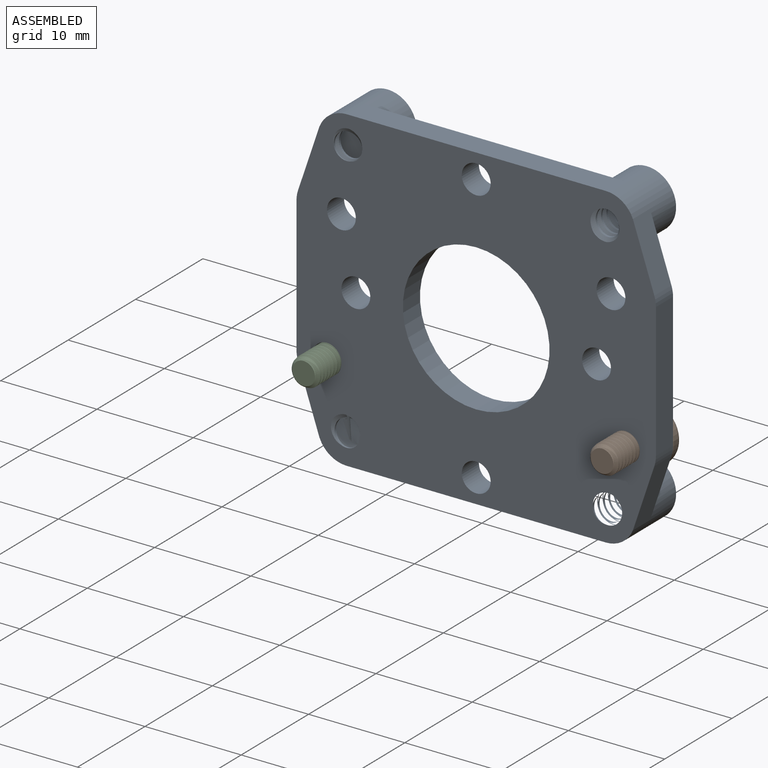
[diagram: assembled view]
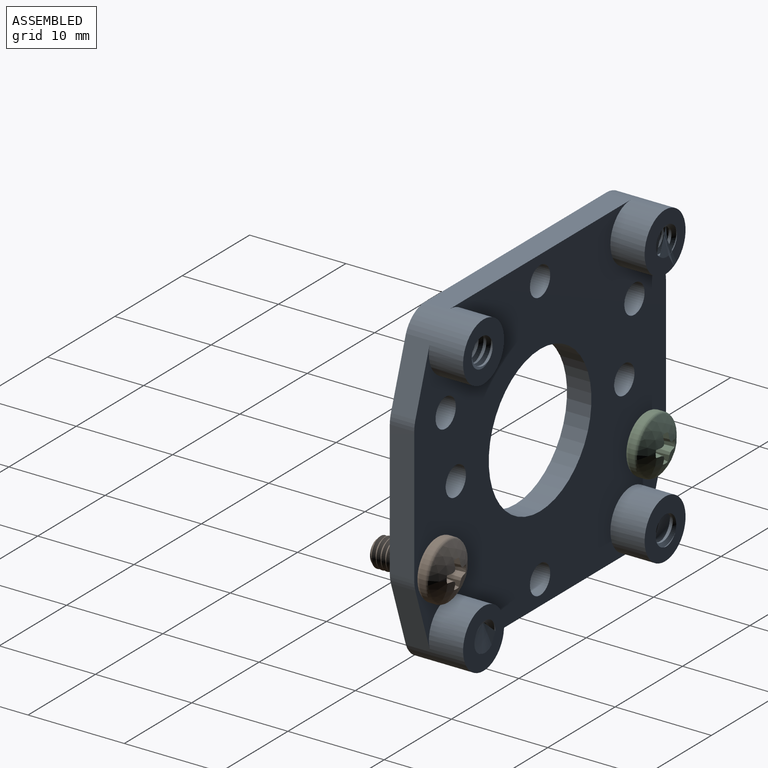
[diagram: assembled view, second angle]
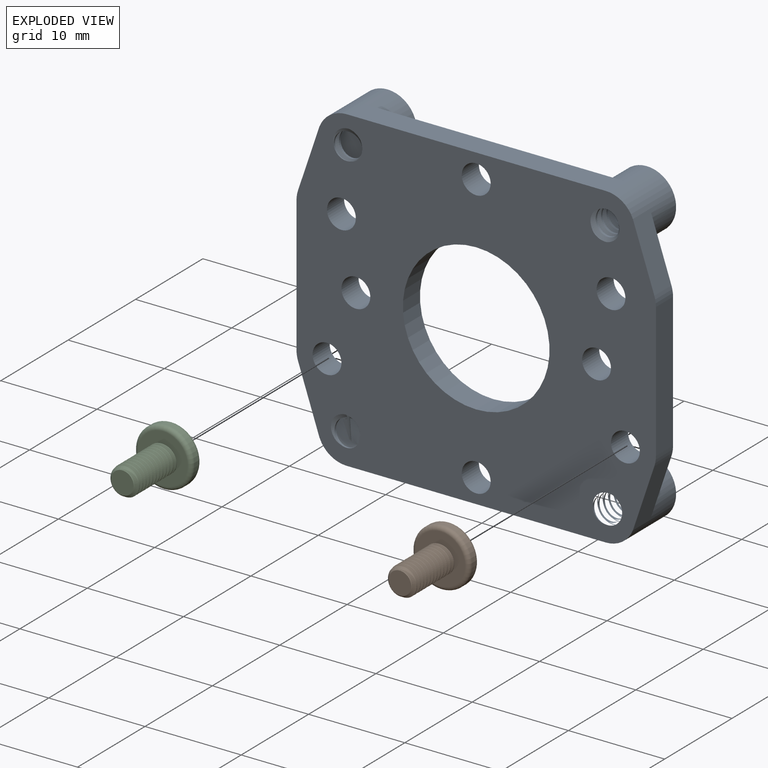
[diagram: exploded view]
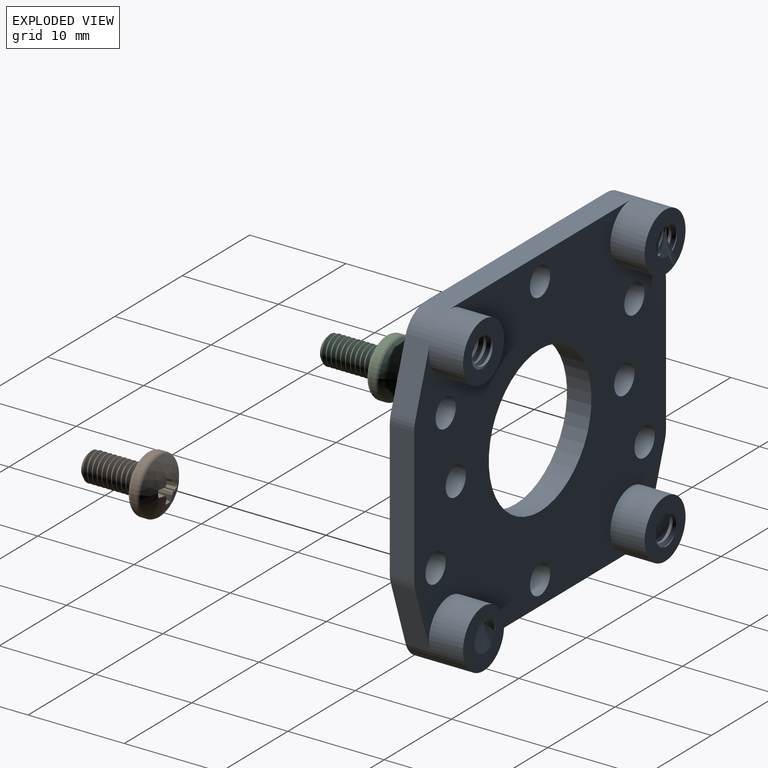
[diagram: exploded view, second angle]
ASSEMBLY  parts=3 mates=2
PART A: 47 faces, bbox 37.5x7x33.2 mm
  f0: cylinder r=1.75mm len=6.1mm, axis (0,-1,0), area 8.4mm2, adj f21,f22,f45,f46
  f1: cylinder r=1.75mm len=6.1mm, axis (0,-1,0), area 8.4mm2, adj f21,f23,f43,f44
  f2: cylinder r=1.75mm len=6.1mm, axis (0,-1,0), area -1.9mm2, adj f21,f24,f41,f42
  f3: cylinder r=1.75mm len=6.1mm, axis (0,-1,0), area 8.4mm2, adj f21,f25,f39,f40
  f4: cylinder r=1.5mm len=3mm, axis (0,-1,0), area 23.9mm2, adj f21,f28
  f5: cylinder r=1.5mm len=3mm, axis (0,-1,0), area 23.9mm2, adj f21,f28
  f6: cylinder r=1.5mm len=3mm, axis (0,-1,0), area 23.9mm2, adj f21,f28
  f7: cylinder r=1.5mm len=3mm, axis (0,-1,0), area 23.9mm2, adj f21,f28
  f8: cylinder r=1.5mm len=3mm, axis (0,-1,0), area 23.9mm2, adj f21,f28
  f9: cylinder r=1.5mm len=3mm, axis (0,-1,0), area 23.9mm2, adj f21,f28
  f10: cylinder r=1.5mm len=3mm, axis (0,-1,0), area 23.9mm2, adj f21,f28
  f11: cylinder r=1.5mm len=3mm, axis (0,-1,0), area 23.9mm2, adj f21,f28
  f12: cylinder r=7.62mm len=15.24mm, axis (0,-1,0), area 121.6mm2, adj f21,f28
  f13: cylinder r=1.35mm len=6.1mm, axis (0,1,0), area 5.4mm2, adj f21,f24,f41,f42
  f14: cylinder r=1.35mm len=6.1mm, axis (0,1,0), area 5.3mm2, adj f21,f22,f45,f46
  f15: cylinder r=1.35mm len=6.1mm, axis (0,1,0), area 12.5mm2, adj f21,f23,f43,f44
  f16: cylinder r=1.35mm len=6.1mm, axis (0,1,0), area 14.6mm2, adj f21,f25,f39,f40
  f17: cylinder r=3.04mm len=6.1mm, axis (0,-1,0), area 77mm2, adj f21,f24,f26,f28,f32
  f18: cylinder r=3.04mm len=6.1mm, axis (0,-1,0), area 77mm2, adj f21,f22,f26,f28,f33
  f19: cylinder r=3.04mm len=6.1mm, axis (0,-1,0), area 77mm2, adj f21,f23,f27,f28,f29
  f20: cylinder r=3.04mm len=6.1mm, axis (0,-1,0), area 77mm2, adj f21,f25,f27,f28,f30
  f21: plane 37.55x33.21mm, normal (0,-1,0), area 907.3mm2, adj f0,f1,f2,f3,f4,f5,f6,f7
  f22: plane 6.27x6.27mm, normal (0,1,0), area 24.8mm2, adj f0,f14,f18,f45,f46
  f23: plane 6.27x6.27mm, normal (0,1,0), area 20.5mm2, adj f1,f15,f19,f43,f44
  f24: plane 6.27x6.27mm, normal (0,1,0), area 20.2mm2, adj f2,f13,f17,f41,f42
  f25: plane 6.27x6.27mm, normal (0,1,0), area 21.7mm2, adj f3,f16,f20,f39,f40
  f26: plane 26.94x2.54mm, normal (0,0,1), area 68.4mm2, adj f17,f18,f21,f28
  f27: plane 26.94x2.54mm, normal (0,0,-1), area 68.4mm2, adj f19,f20,f21,f28
  f28: plane 37.36x33.02mm, normal (0,1,0), area 820.5mm2, adj f4,f5,f6,f7,f8,f9,f10,f11
  f29: plane 6.62x2.55mm, normal (0.95,0,-0.32), area 17.7mm2, adj f19,f21,f28,f35
  f30: plane 6.62x2.55mm, normal (-0.95,0,-0.32), area 17.7mm2, adj f20,f21,f28,f37
  f31: plane 14x2.54mm, normal (-1,0,0), area 35.6mm2, adj f21,f28,f37,f38
  f32: plane 6.62x2.55mm, normal (-0.95,0,0.32), area 17.7mm2, adj f17,f21,f28,f38
  f33: plane 6.62x2.55mm, normal (0.95,0,0.32), area 17.7mm2, adj f18,f21,f28,f36
  f34: plane 14x2.54mm, normal (1,0,0), area 35.6mm2, adj f21,f28,f35,f36
  f35: cylinder r=3.17mm len=2.54mm, axis (0,-1,0), area 2.6mm2, adj f21,f28,f29,f34
  f36: cylinder r=3.17mm len=2.54mm, axis (0,-1,0), area 2.6mm2, adj f21,f28,f33,f34
  f37: cylinder r=3.17mm len=2.54mm, axis (0,-1,0), area 2.6mm2, adj f21,f28,f30,f31
  f38: cylinder r=3.17mm len=2.54mm, axis (0,-1,0), area 2.6mm2, adj f21,f28,f31,f32
  f39: bspline ~6.67x3.5mm, area 43mm2, adj f3,f16,f21,f25
  f40: bspline ~6.65x3.5mm, area 36.2mm2, adj f3,f16,f21,f25
  f41: bspline ~6.76x3.5mm, area 66.3mm2, adj f2,f13,f21,f24
  f42: bspline ~6.56x3.5mm, area 34.7mm2, adj f2,f13,f21,f24
  f43: bspline ~6.76x3.5mm, area 35.3mm2, adj f1,f15,f21,f23
  f44: bspline ~6.56x3.5mm, area 34.7mm2, adj f1,f15,f21,f23
  f45: bspline ~6.76x3.5mm, area 40.7mm2, adj f0,f14,f21,f22
  f46: bspline ~6.56x3.5mm, area 34.7mm2, adj f0,f14,f21,f22
PART B: 33 faces, bbox 6.7x6.7x8.7 mm
  f0: cone r=1.5mm half-angle=15deg, axis (0,0,1), area 1.1mm2, adj f3,f19,f23,f24
  f1: cone r=1.5mm half-angle=15deg, axis (0,0,1), area 1.1mm2, adj f3,f18,f19,f20
  f2: torus R=2.57mm, axis (0,0,1), area 6.9mm2, adj f3,f4
  f3: sphere r=4.35mm, area 25.1mm2, adj f0,f1,f2,f14,f15,f16,f17,f18
  f4: cylinder r=3mm len=6mm, axis (0,0,-1), area 10.9mm2, adj f2,f5
  f5: torus R=2.57mm, axis (0,0,1), area 12.1mm2, adj f4,f9
  f6: cone r=4.35mm half-angle=45deg, axis (0,0,1), area 1.9mm2, adj f8,f10,f11,f12,f13
  f7: cylinder r=1.18mm len=6mm, axis (0,0,1), area 5.5mm2, adj f9,f10,f11,f12,f13
  f8: cylinder r=1.5mm len=5.68mm, axis (0,0,1), area 6.7mm2, adj f6,f9,f10,f11
  f9: plane 5.33x5.33mm, normal (0,0,-1), area 15.1mm2, adj f5,f7,f8,f10,f11
  f10: bspline ~6.16x3mm, area 36.5mm2, adj f6,f7,f8,f9,f12
  f11: bspline ~6.19x3mm, area 36.8mm2, adj f6,f7,f8,f9
  f12: bspline ~2.53x1.31mm, area 0.3mm2, adj f6,f7,f10
  f13: plane 2.35x2.35mm, normal (0,0,-1), area 4.3mm2, adj f6,f7
  f14: cone r=1.5mm half-angle=15deg, axis (0,0,1), area 1.1mm2, adj f3,f15,f19,f32
  f15: plane 1.96x0.68mm, normal (-1,0,0.09), area 0.8mm2, adj f3,f14,f16,f19
  f16: plane 1.98x0.38mm, normal (-0.92,-0.38,0.09), area 0.6mm2, adj f3,f15,f17,f19
  f17: plane 1.98x0.38mm, normal (-0.38,-0.92,0.09), area 0.6mm2, adj f3,f16,f18,f19
  f18: plane 1.96x0.68mm, normal (0,-1,0.09), area 0.8mm2, adj f1,f3,f17,f19
  f19: plane 1.91x1.91mm, normal (0,0,1), area 1.8mm2, adj f0,f1,f14,f15,f16,f17,f18,f20
  f20: plane 1.96x0.68mm, normal (0,1,0.09), area 0.8mm2, adj f1,f3,f19,f21
  f21: plane 1.98x0.38mm, normal (-0.38,0.92,0.09), area 0.6mm2, adj f3,f19,f20,f22
  f22: plane 1.98x0.38mm, normal (-0.92,0.38,0.09), area 0.6mm2, adj f3,f19,f21,f23
  f23: plane 1.96x0.68mm, normal (-1,0,0.09), area 0.8mm2, adj f0,f3,f19,f22
  f24: plane 1.96x0.68mm, normal (1,0,0.09), area 0.8mm2, adj f0,f3,f19,f25
  f25: plane 1.98x0.38mm, normal (0.92,0.38,0.09), area 0.6mm2, adj f3,f19,f24,f26
  f26: plane 1.98x0.38mm, normal (0.38,0.92,0.09), area 0.6mm2, adj f3,f19,f25,f27
  f27: plane 1.96x0.68mm, normal (0,1,0.09), area 0.8mm2, adj f3,f19,f26,f28
  f28: cone r=1.5mm half-angle=15deg, axis (0,0,1), area 1.1mm2, adj f3,f19,f27,f29
  f29: plane 1.96x0.68mm, normal (0,-1,0.09), area 0.8mm2, adj f3,f19,f28,f30
  f30: plane 1.98x0.38mm, normal (0.38,-0.92,0.09), area 0.6mm2, adj f3,f19,f29,f31
  f31: plane 1.98x0.38mm, normal (0.92,-0.38,0.09), area 0.6mm2, adj f3,f19,f30,f32
  f32: plane 1.96x0.68mm, normal (1,0,0.09), area 0.8mm2, adj f3,f14,f19,f31
PART C: same geometry as B
PLACE A t=(-61.65,21.51,24.4)mm
PLACE B rot(axis=(-1,0,0),90deg) t=(-46.14,18.05,17.4)mm
PLACE C rot(axis=(-1,0,0),90deg) t=(-77.15,18.05,17.33)mm
MATE fastened B.f1 <-> A.f8  axis (0,-1,0) through (-46.14,24.05,17.4)mm
MATE fastened A.f11 <-> C.f9  axis (0,1,0) through (-77.15,24.05,17.4)mm
